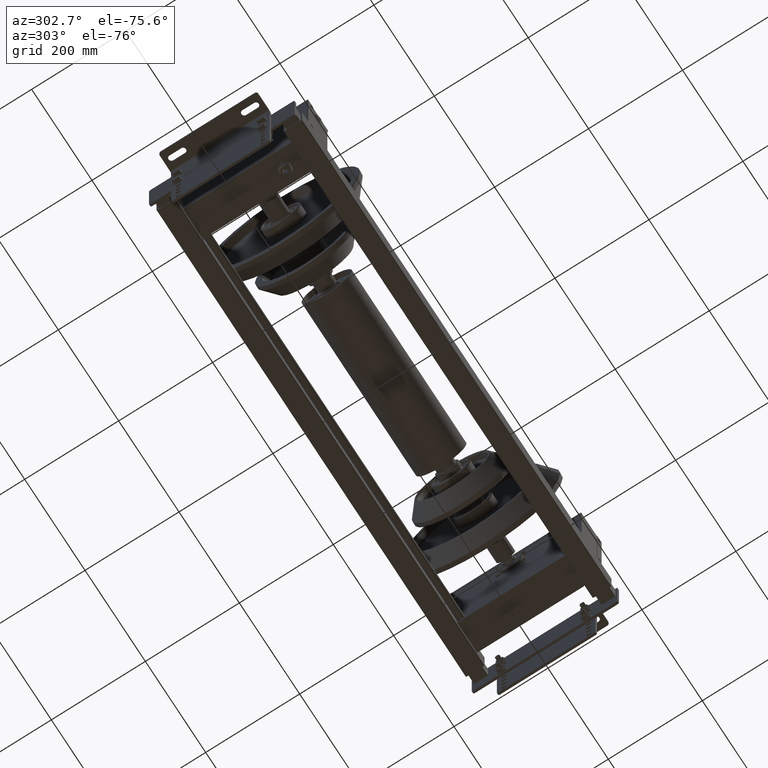
[diagram: clean part render]
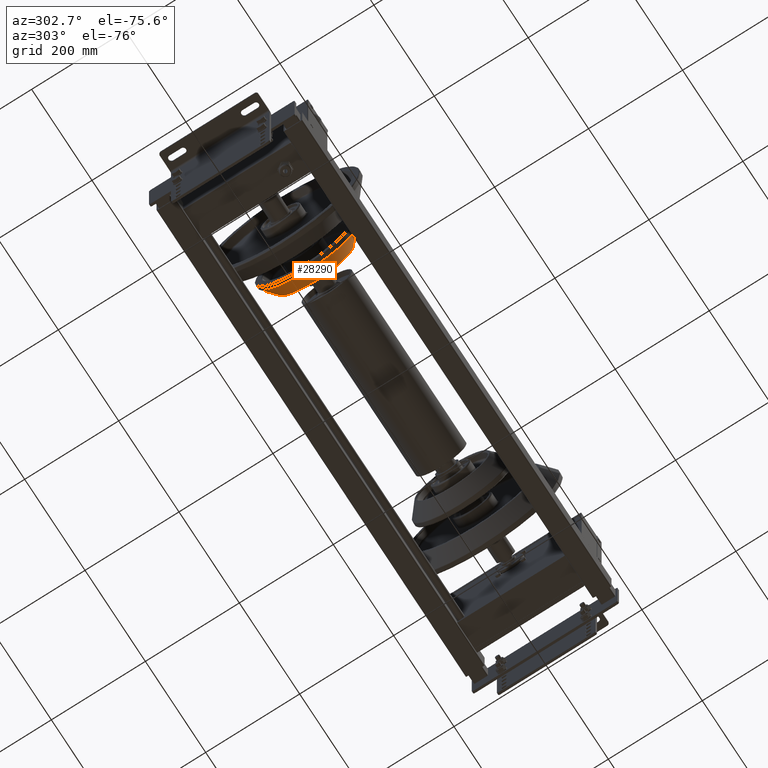
[diagram: same view with one face highlighted and labeled with its STEP entity id]
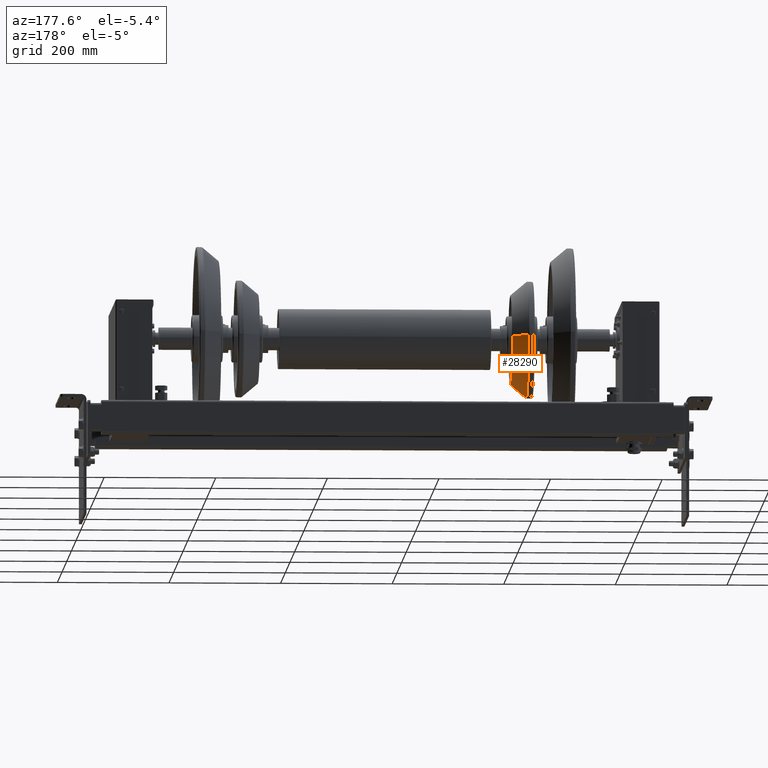
[diagram: same view with one face highlighted and labeled with its STEP entity id]
A machine part, auxiliary view. The second image highlights one B-rep face of the part: STEP entity #28290.
A second angle (auxiliary view) of the same face is appended — the face is thin or edge-on in the first view.
In plain terms, the highlighted conical surface has half-angle 40 deg.
Its self-contained STEP definition (entity closure, byte-faithful):
#27993=CARTESIAN_POINT('',(-19.285575219373122,-80.599473569927952,-9.870589E-015));
#27994=VERTEX_POINT('',#27993);
#28002=CARTESIAN_POINT('',(-19.285575219373115,-9.870589E-015,80.599473569927952));
#28003=VERTEX_POINT('',#28002);
#28004=CARTESIAN_POINT('',(-19.285575219373118,0.0,0.0));
#28005=DIRECTION('',(-1.0,0.0,0.0));
#28006=DIRECTION('',(0.0,-1.0,0.0));
#28007=AXIS2_PLACEMENT_3D('',#28004,#28005,#28006);
#28008=CIRCLE('',#28007,80.599473569927952);
#28009=EDGE_CURVE('',#27994,#28003,#28008,.T.);
#28088=CARTESIAN_POINT('',(9.096796376304386,104.415111107797440,0.0));
#28089=VERTEX_POINT('',#28088);
#28090=CARTESIAN_POINT('',(-19.285575219373118,80.599473569927952,0.0));
#28091=VERTEX_POINT('',#28090);
#28092=CARTESIAN_POINT('',(9.096796376304386,104.415111107797440,0.0));
#28093=DIRECTION('',(-0.766044443118978,-0.642787609686539,0.0));
#28094=VECTOR('',#28093,37.050554769534827);
#28095=LINE('',#28092,#28094);
#28096=EDGE_CURVE('',#28089,#28091,#28095,.T.);
#28107=CARTESIAN_POINT('',(9.096796376304390,-104.415111107797440,-1.278716E-014));
#28108=VERTEX_POINT('',#28107);
#28116=CARTESIAN_POINT('',(9.096796376304390,-104.415111107797440,-1.278716E-014));
#28117=DIRECTION('',(-0.766044443118978,0.642787609686539,7.871878E-017));
#28118=VECTOR('',#28117,37.050554769534827);
#28119=LINE('',#28116,#28118);
#28120=EDGE_CURVE('',#28108,#27994,#28119,.T.);
#28205=CARTESIAN_POINT('',(9.096796376304386,-1.278716E-014,104.415111107797440));
#28206=VERTEX_POINT('',#28205);
#28214=CARTESIAN_POINT('',(9.096796376304386,0.0,0.0));
#28215=DIRECTION('',(1.0,0.0,0.0));
#28216=DIRECTION('',(0.0,-1.0,0.0));
#28217=AXIS2_PLACEMENT_3D('',#28214,#28215,#28216);
#28218=CIRCLE('',#28217,104.415111107797440);
#28219=EDGE_CURVE('',#28206,#28108,#28218,.T.);
#28232=CARTESIAN_POINT('',(9.096796376304386,0.0,0.0));
#28233=DIRECTION('',(1.0,0.0,0.0));
#28234=DIRECTION('',(0.0,-1.0,0.0));
#28235=AXIS2_PLACEMENT_3D('',#28232,#28233,#28234);
#28236=CIRCLE('',#28235,104.415111107797440);
#28237=EDGE_CURVE('',#28089,#28206,#28236,.T.);
#28271=CARTESIAN_POINT('',(-5.103080092572398,0.0,0.0));
#28272=DIRECTION('',(1.0,0.0,0.0));
#28273=DIRECTION('',(0.0,1.0,0.0));
#28274=AXIS2_PLACEMENT_3D('',#28271,#28272,#28273);
#28275=CONICAL_SURFACE('',#28274,92.500000000000000,39.999999999999993);
#28276=ORIENTED_EDGE('',*,*,#28096,.T.);
#28277=CARTESIAN_POINT('',(-19.285575219373118,0.0,0.0));
#28278=DIRECTION('',(-1.0,0.0,0.0));
#28279=DIRECTION('',(0.0,-1.0,0.0));
#28280=AXIS2_PLACEMENT_3D('',#28277,#28278,#28279);
#28281=CIRCLE('',#28280,80.599473569927952);
#28282=EDGE_CURVE('',#28003,#28091,#28281,.T.);
#28283=ORIENTED_EDGE('',*,*,#28282,.F.);
#28284=ORIENTED_EDGE('',*,*,#28009,.F.);
#28285=ORIENTED_EDGE('',*,*,#28120,.F.);
#28286=ORIENTED_EDGE('',*,*,#28219,.F.);
#28287=ORIENTED_EDGE('',*,*,#28237,.F.);
#28288=EDGE_LOOP('',(#28276,#28283,#28284,#28285,#28286,#28287));
#28289=FACE_OUTER_BOUND('',#28288,.T.);
#28290=ADVANCED_FACE('',(#28289),#28275,.T.);